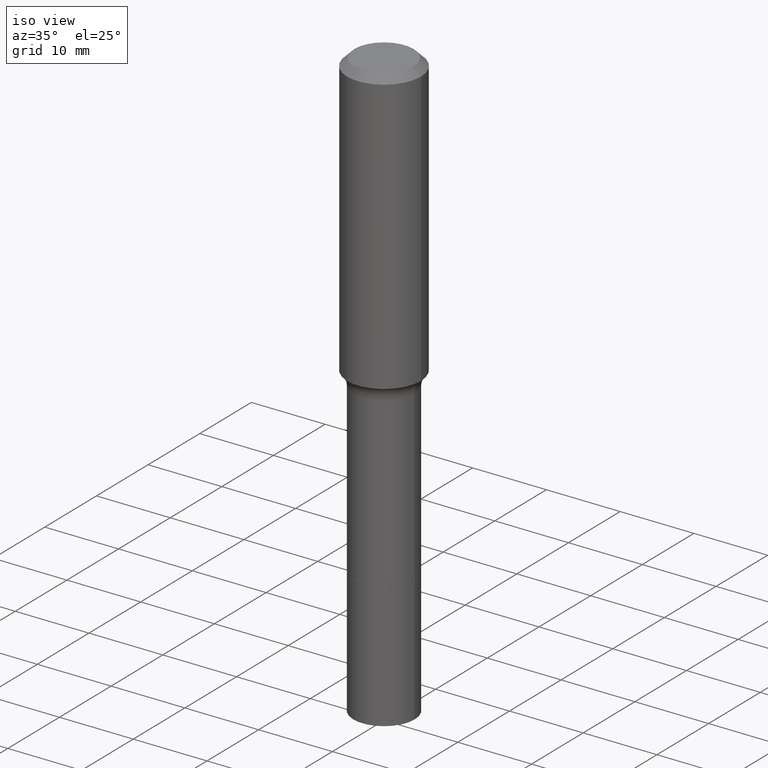
[diagram: clean part render]
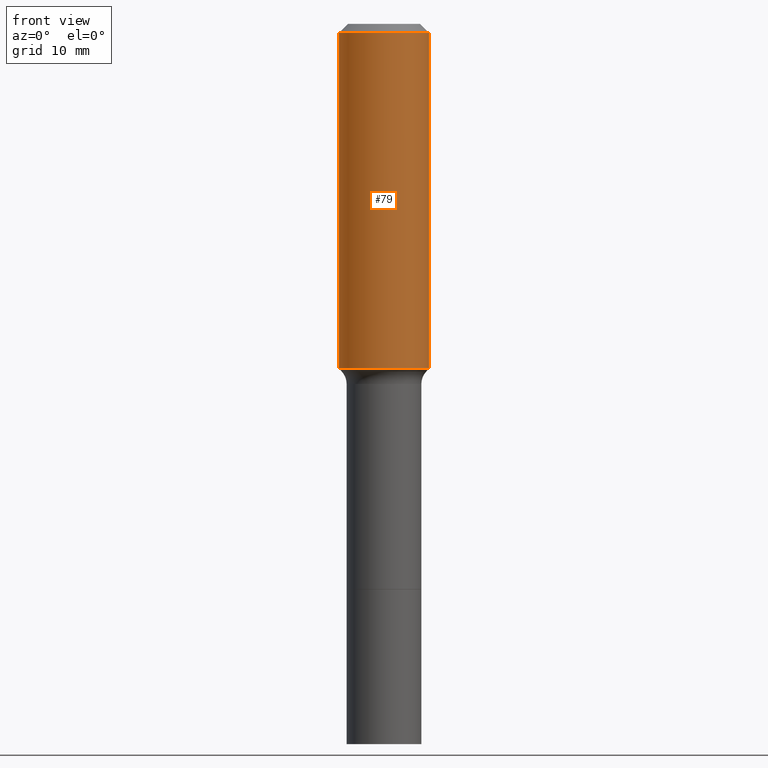
[diagram: tour spotlight — one face highlighted and labeled with its STEP entity id]
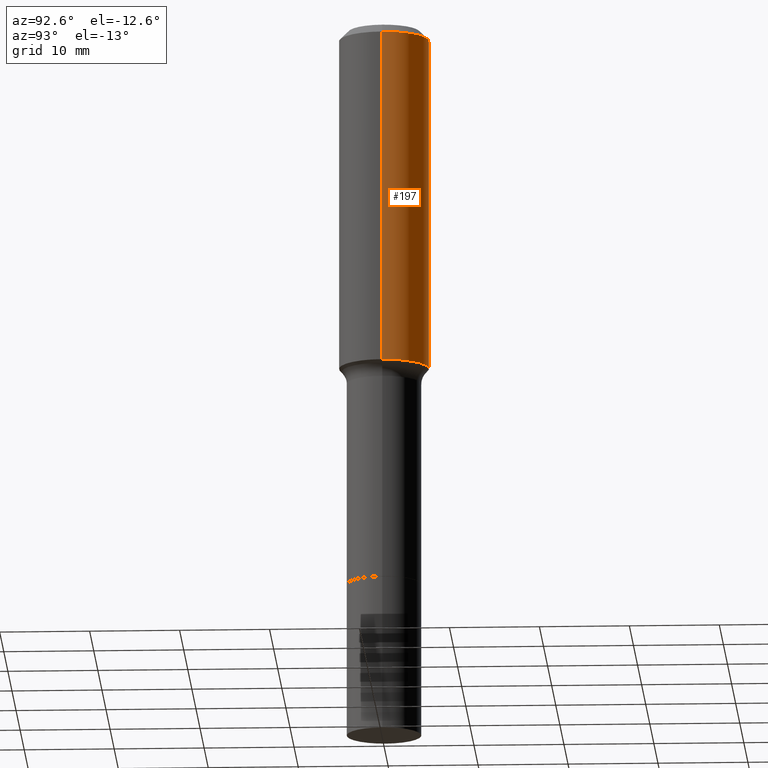
[diagram: tour spotlight — one face highlighted and labeled with its STEP entity id]
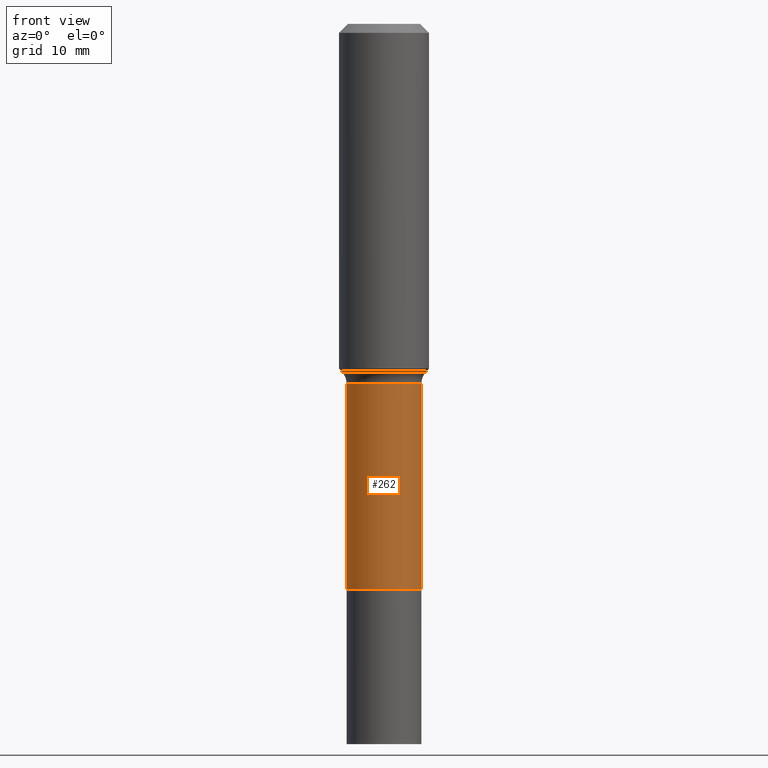
[diagram: tour spotlight — one face highlighted and labeled with its STEP entity id]
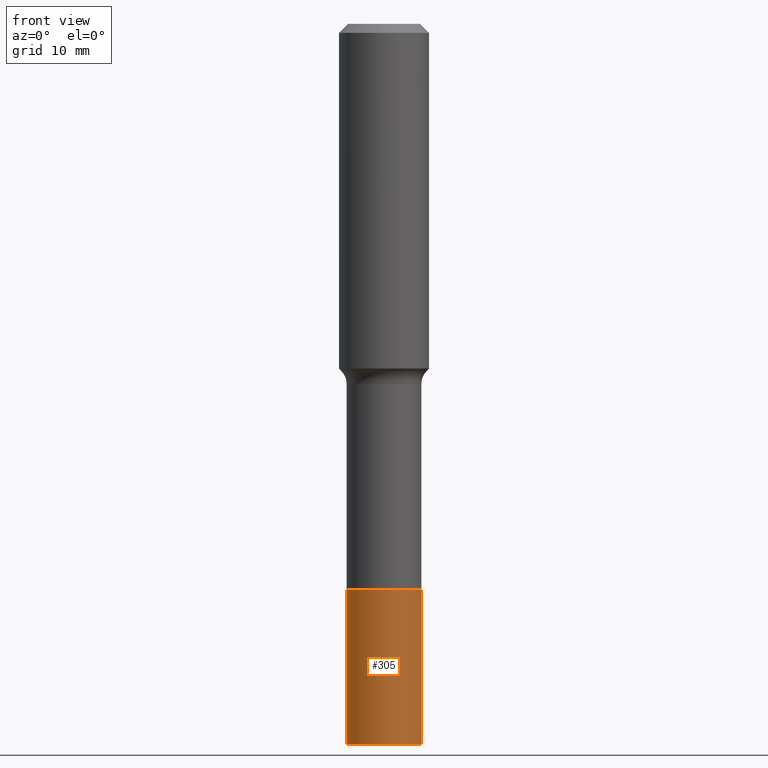
[diagram: tour spotlight — one face highlighted and labeled with its STEP entity id]
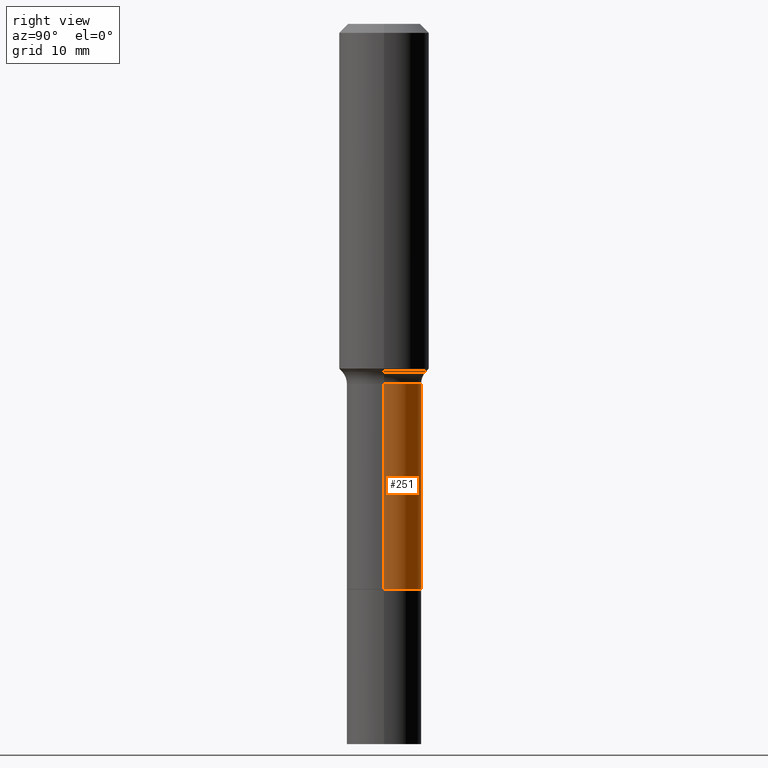
[diagram: tour spotlight — one face highlighted and labeled with its STEP entity id]
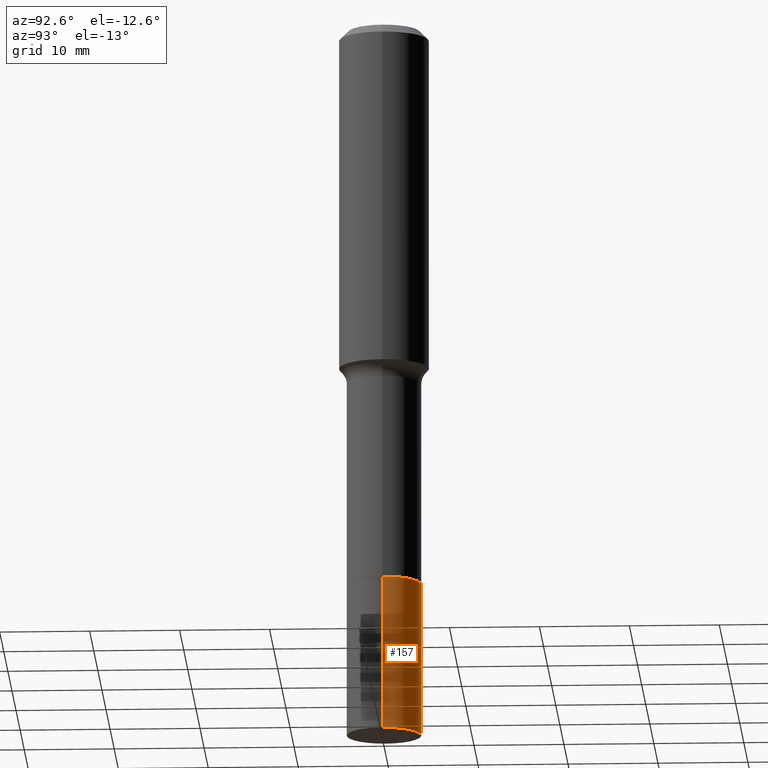
[diagram: tour spotlight — one face highlighted and labeled with its STEP entity id]
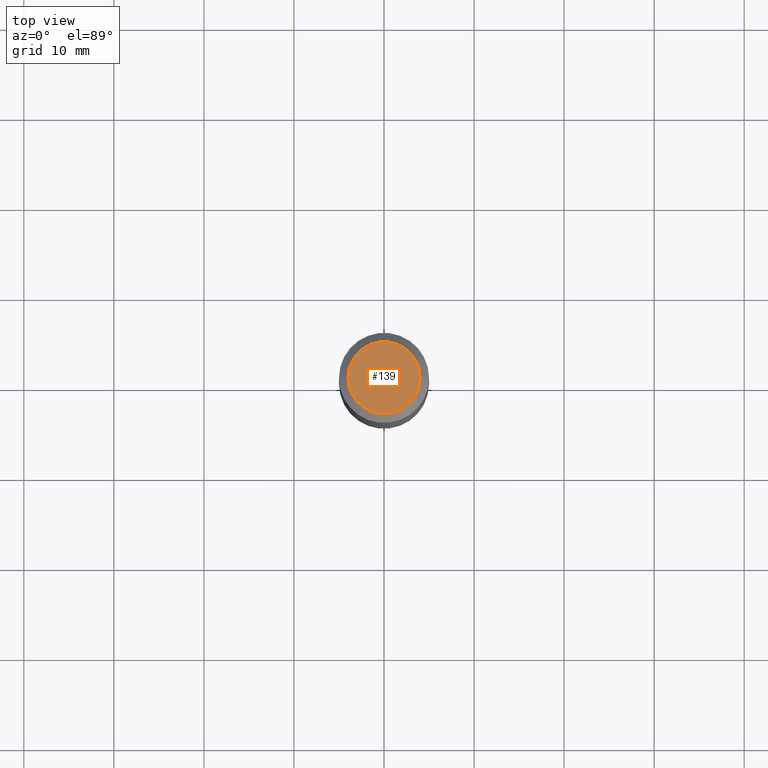
[diagram: tour spotlight — one face highlighted and labeled with its STEP entity id]
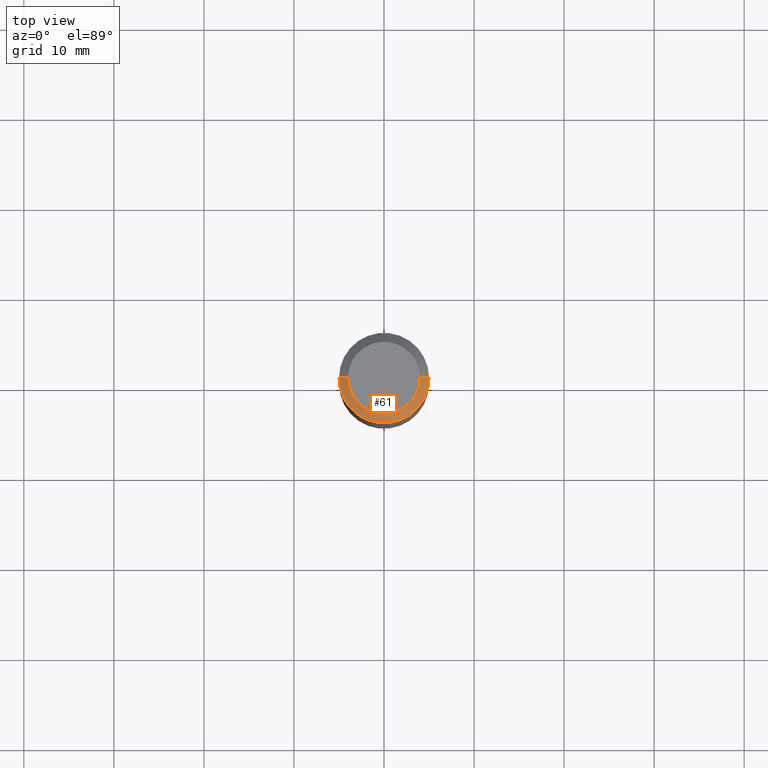
[diagram: tour spotlight — one face highlighted and labeled with its STEP entity id]
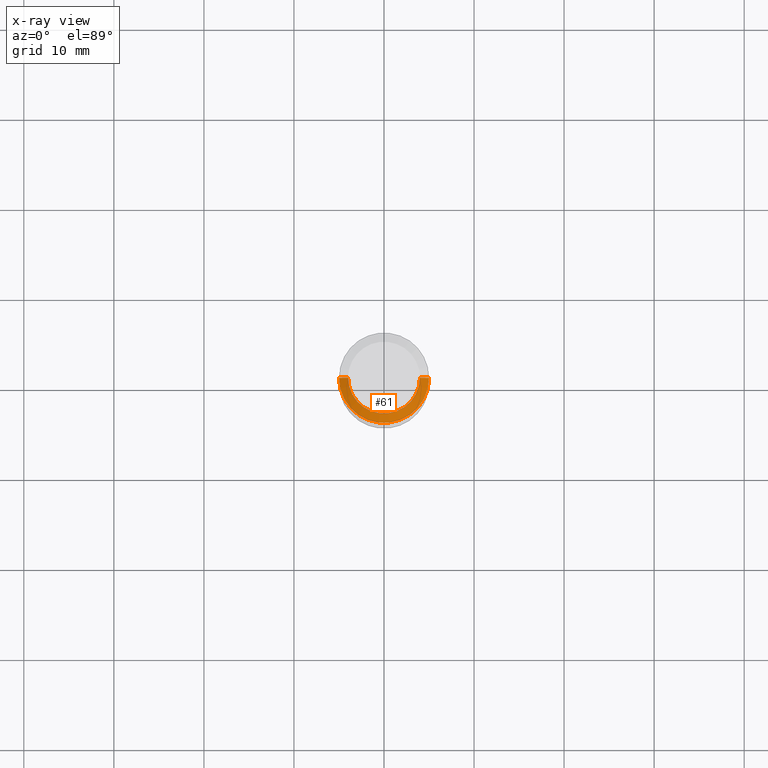
[diagram: x-ray of the same camera — body ghosted, this tour face saturated]
A machine part: a face-by-face anatomy tour. The part has 18 B-rep faces; the first image is the clean iso view, then the 8 largest visible faces are spotlighted one at a time (largest first), each with its STEP entity span.

Face 1 — front view, entity #79. In plain terms, the highlighted cylindrical surface (partial cylindrical patch) has radius 5 mm, axis along (-0, 0, 1).
Definition (entity closure, byte-faithful):
#14 = ORIENTED_EDGE ( 'NONE', *, *, #329, .F. ) ;
#29 = DIRECTION ( 'NONE',  ( 1.000000000000000000, -6.982962677686266711E-15, 0.000000000000000000 ) ) ;
#49 = ORIENTED_EDGE ( 'NONE', *, *, #206, .F. ) ;
#55 = ORIENTED_EDGE ( 'NONE', *, *, #429, .T. ) ;
#64 = EDGE_CURVE ( 'NONE', #209, #143, #324, .T. ) ;
#77 = FACE_OUTER_BOUND ( 'NONE', #460, .T. ) ;
#79 = ADVANCED_FACE ( 'NONE', ( #77 ), #150, .T. ) ;
#80 = DIRECTION ( 'NONE',  ( 1.000000000000000000, -6.982962677686265922E-15, 0.000000000000000000 ) ) ;
#97 = DIRECTION ( 'NONE',  ( -2.445468806185136597E-29, 3.491481338843145583E-15, 1.000000000000000000 ) ) ;
#111 = DIRECTION ( 'NONE',  ( -2.445468806185136597E-29, 3.491481338843145583E-15, 1.000000000000000000 ) ) ;
#112 = CARTESIAN_POINT ( 'NONE',  ( 0.1968500000000001082, -1.374596203102542397E-15, 9.598753983154305062E-30 ) ) ;
#136 = VECTOR ( 'NONE', #331, 39.37007874015748143 ) ;
#142 = CARTESIAN_POINT ( 'NONE',  ( -0.1968500000000000250, -1.301235451839561360E-15, -0.03937000000000025896 ) ) ;
#143 = VERTEX_POINT ( 'NONE', #238 ) ;
#146 = AXIS2_PLACEMENT_3D ( 'NONE', #502, #97, #29 ) ;
#150 = CYLINDRICAL_SURFACE ( 'NONE', #263, 0.1968500000000001082 ) ;
#159 = LINE ( 'NONE', #319, #136 ) ;
#206 = EDGE_CURVE ( 'NONE', #209, #406, #159, .T. ) ;
#209 = VERTEX_POINT ( 'NONE', #372 ) ;
#211 = DIRECTION ( 'NONE',  ( -2.445468806185136597E-29, 3.491481338843145583E-15, 1.000000000000000000 ) ) ;
#213 = CIRCLE ( 'NONE', #359, 0.1968500000000000250 ) ;
#238 = CARTESIAN_POINT ( 'NONE',  ( 0.1968500000000001915, -6.637014237158927084E-15, -1.507216428600478775 ) ) ;
#263 = AXIS2_PLACEMENT_3D ( 'NONE', #275, #111, #355 ) ;
#275 = CARTESIAN_POINT ( 'NONE',  ( 0.000000000000000000, 0.000000000000000000, 0.000000000000000000 ) ) ;
#276 = LINE ( 'NONE', #112, #425 ) ;
#279 = VERTEX_POINT ( 'NONE', #488 ) ;
#319 = CARTESIAN_POINT ( 'NONE',  ( -0.1968500000000001082, 1.398703375343757985E-15, -9.682923725166787881E-30 ) ) ;
#324 = CIRCLE ( 'NONE', #146, 0.1968500000000001915 ) ;
#329 = EDGE_CURVE ( 'NONE', #406, #279, #213, .T. ) ;
#331 = DIRECTION ( 'NONE',  ( -2.445468806185136877E-29, 3.491481338843145188E-15, 1.000000000000000000 ) ) ;
#355 = DIRECTION ( 'NONE',  ( 1.000000000000000000, -6.982962677686266711E-15, 4.876176775795935793E-29 ) ) ;
#359 = AXIS2_PLACEMENT_3D ( 'NONE', #484, #211, #80 ) ;
#372 = CARTESIAN_POINT ( 'NONE',  ( -0.1968500000000001915, -3.863714658712625321E-15, -1.507216428600478775 ) ) ;
#406 = VERTEX_POINT ( 'NONE', #142 ) ;
#425 = VECTOR ( 'NONE', #435, 39.37007874015748143 ) ;
#429 = EDGE_CURVE ( 'NONE', #143, #279, #276, .T. ) ;
#435 = DIRECTION ( 'NONE',  ( -2.445468806185136877E-29, 3.491481338843145188E-15, 1.000000000000000000 ) ) ;
#460 = EDGE_LOOP ( 'NONE', ( #49, #500, #55, #14 ) ) ;
#484 = CARTESIAN_POINT ( 'NONE',  ( 9.627810689950945397E-31, -1.374596203102555315E-16, -0.03937000000000025896 ) ) ;
#488 = CARTESIAN_POINT ( 'NONE',  ( 0.1968500000000000250, -1.512055823412797189E-15, -0.03937000000000025896 ) ) ;
#500 = ORIENTED_EDGE ( 'NONE', *, *, #64, .T. ) ;
#502 = CARTESIAN_POINT ( 'NONE',  ( 3.685850760312237966E-29, -5.262418034056383898E-15, -1.507216428600478775 ) ) ;

Face 2 — auxiliary view, entity #197. In plain terms, the highlighted cylindrical surface (partial cylindrical patch) has radius 5 mm, axis along (-0, 0, 1).
Definition (entity closure, byte-faithful):
#16 = ORIENTED_EDGE ( 'NONE', *, *, #429, .F. ) ;
#30 = CIRCLE ( 'NONE', #377, 0.1968500000000000250 ) ;
#34 = CYLINDRICAL_SURFACE ( 'NONE', #223, 0.1968500000000001082 ) ;
#39 = ORIENTED_EDGE ( 'NONE', *, *, #206, .T. ) ;
#52 = ORIENTED_EDGE ( 'NONE', *, *, #87, .F. ) ;
#66 = ORIENTED_EDGE ( 'NONE', *, *, #154, .T. ) ;
#74 = DIRECTION ( 'NONE',  ( -2.445468806185136597E-29, 3.491481338843145583E-15, 1.000000000000000000 ) ) ;
#87 = EDGE_CURVE ( 'NONE', #279, #406, #30, .T. ) ;
#112 = CARTESIAN_POINT ( 'NONE',  ( 0.1968500000000001082, -1.374596203102542397E-15, 9.598753983154305062E-30 ) ) ;
#116 = CIRCLE ( 'NONE', #167, 0.1968500000000001915 ) ;
#132 = EDGE_LOOP ( 'NONE', ( #66, #39, #52, #16 ) ) ;
#136 = VECTOR ( 'NONE', #331, 39.37007874015748143 ) ;
#142 = CARTESIAN_POINT ( 'NONE',  ( -0.1968500000000000250, -1.301235451839561360E-15, -0.03937000000000025896 ) ) ;
#143 = VERTEX_POINT ( 'NONE', #238 ) ;
#153 = DIRECTION ( 'NONE',  ( 1.000000000000000000, -6.982962677686265922E-15, 0.000000000000000000 ) ) ;
#154 = EDGE_CURVE ( 'NONE', #143, #209, #116, .T. ) ;
#159 = LINE ( 'NONE', #319, #136 ) ;
#167 = AXIS2_PLACEMENT_3D ( 'NONE', #239, #437, #517 ) ;
#197 = ADVANCED_FACE ( 'NONE', ( #397 ), #34, .T. ) ;
#198 = CARTESIAN_POINT ( 'NONE',  ( 0.000000000000000000, 0.000000000000000000, 0.000000000000000000 ) ) ;
#199 = DIRECTION ( 'NONE',  ( 1.000000000000000000, -6.982962677686266711E-15, 4.876176775795935793E-29 ) ) ;
#206 = EDGE_CURVE ( 'NONE', #209, #406, #159, .T. ) ;
#209 = VERTEX_POINT ( 'NONE', #372 ) ;
#223 = AXIS2_PLACEMENT_3D ( 'NONE', #198, #74, #199 ) ;
#238 = CARTESIAN_POINT ( 'NONE',  ( 0.1968500000000001915, -6.637014237158927084E-15, -1.507216428600478775 ) ) ;
#239 = CARTESIAN_POINT ( 'NONE',  ( 3.685850760312237966E-29, -5.262418034056383898E-15, -1.507216428600478775 ) ) ;
#271 = DIRECTION ( 'NONE',  ( -2.445468806185136597E-29, 3.491481338843145583E-15, 1.000000000000000000 ) ) ;
#276 = LINE ( 'NONE', #112, #425 ) ;
#279 = VERTEX_POINT ( 'NONE', #488 ) ;
#319 = CARTESIAN_POINT ( 'NONE',  ( -0.1968500000000001082, 1.398703375343757985E-15, -9.682923725166787881E-30 ) ) ;
#331 = DIRECTION ( 'NONE',  ( -2.445468806185136877E-29, 3.491481338843145188E-15, 1.000000000000000000 ) ) ;
#354 = CARTESIAN_POINT ( 'NONE',  ( 9.627810689950945397E-31, -1.374596203102555315E-16, -0.03937000000000025896 ) ) ;
#372 = CARTESIAN_POINT ( 'NONE',  ( -0.1968500000000001915, -3.863714658712625321E-15, -1.507216428600478775 ) ) ;
#377 = AXIS2_PLACEMENT_3D ( 'NONE', #354, #271, #153 ) ;
#397 = FACE_OUTER_BOUND ( 'NONE', #132, .T. ) ;
#406 = VERTEX_POINT ( 'NONE', #142 ) ;
#425 = VECTOR ( 'NONE', #435, 39.37007874015748143 ) ;
#429 = EDGE_CURVE ( 'NONE', #143, #279, #276, .T. ) ;
#435 = DIRECTION ( 'NONE',  ( -2.445468806185136877E-29, 3.491481338843145188E-15, 1.000000000000000000 ) ) ;
#437 = DIRECTION ( 'NONE',  ( -2.445468806185136597E-29, 3.491481338843145583E-15, 1.000000000000000000 ) ) ;
#488 = CARTESIAN_POINT ( 'NONE',  ( 0.1968500000000000250, -1.512055823412797189E-15, -0.03937000000000025896 ) ) ;
#517 = DIRECTION ( 'NONE',  ( 1.000000000000000000, -6.982962677686266711E-15, 0.000000000000000000 ) ) ;

Face 3 — front view, entity #262. In plain terms, the highlighted cylindrical surface (partial cylindrical patch) has radius 4.1504 mm, axis along (-0, 0, 1).
Definition (entity closure, byte-faithful):
#9 = CARTESIAN_POINT ( 'NONE',  ( -0.1633999999999999897, -5.903461936716274512E-15, -2.472100000000000186 ) ) ;
#13 = CARTESIAN_POINT ( 'NONE',  ( 3.850635182219116347E-29, -5.497686516142417553E-15, -1.574600000000000222 ) ) ;
#35 = CARTESIAN_POINT ( 'NONE',  ( 0.1633999999999999897, -9.772307119288075275E-15, -2.472100000000000186 ) ) ;
#43 = DIRECTION ( 'NONE',  ( 1.000000000000000000, -6.982962677686265922E-15, 0.000000000000000000 ) ) ;
#47 = EDGE_CURVE ( 'NONE', #69, #426, #464, .T. ) ;
#69 = VERTEX_POINT ( 'NONE', #35 ) ;
#75 = CARTESIAN_POINT ( 'NONE',  ( 0.1633999999999998787, -6.638702617676352518E-15, -1.574600000000000222 ) ) ;
#84 = VERTEX_POINT ( 'NONE', #114 ) ;
#91 = DIRECTION ( 'NONE',  ( 1.000000000000000000, -6.982962677686266711E-15, 4.876176775795935793E-29 ) ) ;
#104 = EDGE_LOOP ( 'NONE', ( #340, #257, #330, #383 ) ) ;
#114 = CARTESIAN_POINT ( 'NONE',  ( -0.1633999999999998787, -5.903461936716276090E-15, -1.574600000000000222 ) ) ;
#165 = EDGE_CURVE ( 'NONE', #219, #84, #441, .T. ) ;
#169 = CIRCLE ( 'NONE', #312, 0.1633999999999999897 ) ;
#170 = CARTESIAN_POINT ( 'NONE',  ( 6.045443435770276846E-29, -8.631291017754141099E-15, -2.472100000000000186 ) ) ;
#215 = DIRECTION ( 'NONE',  ( -2.445468806185136597E-29, 3.491481338843145583E-15, 1.000000000000000000 ) ) ;
#219 = VERTEX_POINT ( 'NONE', #9 ) ;
#230 = CIRCLE ( 'NONE', #401, 0.1633999999999998787 ) ;
#235 = CARTESIAN_POINT ( 'NONE',  ( -0.1633999999999999619, 1.161026830232003433E-15, -8.037539937476514246E-30 ) ) ;
#248 = DIRECTION ( 'NONE',  ( -2.445468806185136597E-29, 3.491481338843145583E-15, 1.000000000000000000 ) ) ;
#252 = CARTESIAN_POINT ( 'NONE',  ( 0.000000000000000000, 0.000000000000000000, 0.000000000000000000 ) ) ;
#257 = ORIENTED_EDGE ( 'NONE', *, *, #375, .T. ) ;
#262 = ADVANCED_FACE ( 'NONE', ( #409 ), #491, .T. ) ;
#265 = DIRECTION ( 'NONE',  ( -2.445468806185136877E-29, 3.491481338843145188E-15, 1.000000000000000000 ) ) ;
#304 = CARTESIAN_POINT ( 'NONE',  ( 0.1633999999999999619, -1.141016101533935753E-15, 7.967672851650557527E-30 ) ) ;
#312 = AXIS2_PLACEMENT_3D ( 'NONE', #170, #215, #374 ) ;
#330 = ORIENTED_EDGE ( 'NONE', *, *, #47, .T. ) ;
#340 = ORIENTED_EDGE ( 'NONE', *, *, #165, .F. ) ;
#344 = VECTOR ( 'NONE', #393, 39.37007874015748143 ) ;
#345 = AXIS2_PLACEMENT_3D ( 'NONE', #252, #248, #91 ) ;
#367 = VECTOR ( 'NONE', #265, 39.37007874015748143 ) ;
#374 = DIRECTION ( 'NONE',  ( 1.000000000000000000, -6.982962677686261189E-15, 0.000000000000000000 ) ) ;
#375 = EDGE_CURVE ( 'NONE', #219, #69, #169, .T. ) ;
#383 = ORIENTED_EDGE ( 'NONE', *, *, #442, .F. ) ;
#393 = DIRECTION ( 'NONE',  ( -2.445468806185136877E-29, 3.491481338843145188E-15, 1.000000000000000000 ) ) ;
#401 = AXIS2_PLACEMENT_3D ( 'NONE', #13, #403, #43 ) ;
#403 = DIRECTION ( 'NONE',  ( -2.445468806185136597E-29, 3.491481338843145583E-15, 1.000000000000000000 ) ) ;
#409 = FACE_OUTER_BOUND ( 'NONE', #104, .T. ) ;
#426 = VERTEX_POINT ( 'NONE', #75 ) ;
#441 = LINE ( 'NONE', #235, #344 ) ;
#442 = EDGE_CURVE ( 'NONE', #84, #426, #230, .T. ) ;
#464 = LINE ( 'NONE', #304, #367 ) ;
#491 = CYLINDRICAL_SURFACE ( 'NONE', #345, 0.1633999999999999619 ) ;

Face 4 — front view, entity #305. In plain terms, the highlighted cylindrical surface (partial cylindrical patch) has radius 4.1504 mm, axis along (-0, 0, 1).
Definition (entity closure, byte-faithful):
#4 = DIRECTION ( 'NONE',  ( 1.000000000000000000, -6.982962677686264344E-15, 0.000000000000000000 ) ) ;
#31 = LINE ( 'NONE', #270, #411 ) ;
#41 = VERTEX_POINT ( 'NONE', #422 ) ;
#98 = CARTESIAN_POINT ( 'NONE',  ( 0.1634000000000001007, -9.774052859957499145E-15, -2.472600000000000353 ) ) ;
#119 = AXIS2_PLACEMENT_3D ( 'NONE', #402, #451, #4 ) ;
#131 = FACE_OUTER_BOUND ( 'NONE', #149, .T. ) ;
#138 = LINE ( 'NONE', #98, #487 ) ;
#141 = ORIENTED_EDGE ( 'NONE', *, *, #185, .F. ) ;
#149 = EDGE_LOOP ( 'NONE', ( #414, #404, #266, #141 ) ) ;
#151 = AXIS2_PLACEMENT_3D ( 'NONE', #516, #350, #155 ) ;
#155 = DIRECTION ( 'NONE',  ( 1.000000000000000000, -6.982962677686261189E-15, 0.000000000000000000 ) ) ;
#161 = CYLINDRICAL_SURFACE ( 'NONE', #188, 0.1634000000000001007 ) ;
#173 = EDGE_CURVE ( 'NONE', #496, #268, #31, .T. ) ;
#174 = DIRECTION ( 'NONE',  ( -2.445468806185136877E-29, 3.491481338843145188E-15, 1.000000000000000000 ) ) ;
#185 = EDGE_CURVE ( 'NONE', #268, #227, #475, .T. ) ;
#188 = AXIS2_PLACEMENT_3D ( 'NONE', #286, #328, #361 ) ;
#227 = VERTEX_POINT ( 'NONE', #482 ) ;
#258 = CARTESIAN_POINT ( 'NONE',  ( -0.1634000000000001840, -8.653876361389961065E-15, -3.149600000000000399 ) ) ;
#266 = ORIENTED_EDGE ( 'NONE', *, *, #476, .T. ) ;
#268 = VERTEX_POINT ( 'NONE', #326 ) ;
#270 = CARTESIAN_POINT ( 'NONE',  ( -0.1634000000000001007, -7.472009928191558183E-15, -2.472600000000000353 ) ) ;
#286 = CARTESIAN_POINT ( 'NONE',  ( 6.046666170173369648E-29, -8.633036758423563392E-15, -2.472600000000000353 ) ) ;
#302 = CIRCLE ( 'NONE', #119, 0.1634000000000001840 ) ;
#305 = ADVANCED_FACE ( 'NONE', ( #131 ), #161, .T. ) ;
#326 = CARTESIAN_POINT ( 'NONE',  ( -0.1633999999999999897, -8.653876361389962642E-15, -2.472600000000000353 ) ) ;
#328 = DIRECTION ( 'NONE',  ( -2.445468806185136597E-29, 3.491481338843145583E-15, 1.000000000000000000 ) ) ;
#342 = EDGE_CURVE ( 'NONE', #496, #41, #302, .T. ) ;
#350 = DIRECTION ( 'NONE',  ( -2.445468806185136597E-29, 3.491481338843145583E-15, 1.000000000000000000 ) ) ;
#361 = DIRECTION ( 'NONE',  ( 1.000000000000000000, -6.982962677686268288E-15, 0.000000000000000000 ) ) ;
#402 = CARTESIAN_POINT ( 'NONE',  ( 7.702248551960706711E-29, -1.099676962482037231E-14, -3.149600000000000399 ) ) ;
#404 = ORIENTED_EDGE ( 'NONE', *, *, #342, .T. ) ;
#411 = VECTOR ( 'NONE', #434, 39.37007874015748143 ) ;
#414 = ORIENTED_EDGE ( 'NONE', *, *, #173, .F. ) ;
#422 = CARTESIAN_POINT ( 'NONE',  ( 0.1634000000000001840, -1.213778572635430964E-14, -3.149600000000000399 ) ) ;
#434 = DIRECTION ( 'NONE',  ( -2.445468806185136877E-29, 3.491481338843145188E-15, 1.000000000000000000 ) ) ;
#451 = DIRECTION ( 'NONE',  ( -2.445468806185136597E-29, 3.491481338843145583E-15, 1.000000000000000000 ) ) ;
#475 = CIRCLE ( 'NONE', #151, 0.1633999999999999897 ) ;
#476 = EDGE_CURVE ( 'NONE', #41, #227, #138, .T. ) ;
#482 = CARTESIAN_POINT ( 'NONE',  ( 0.1633999999999999897, -9.774052859957497567E-15, -2.472600000000000353 ) ) ;
#487 = VECTOR ( 'NONE', #174, 39.37007874015748143 ) ;
#496 = VERTEX_POINT ( 'NONE', #258 ) ;
#516 = CARTESIAN_POINT ( 'NONE',  ( 6.046666170173369648E-29, -8.633036758423563392E-15, -2.472600000000000353 ) ) ;

Face 5 — right view, entity #251. In plain terms, the highlighted cylindrical surface (partial cylindrical patch) has radius 4.1504 mm, axis along (-0, 0, 1).
Definition (entity closure, byte-faithful):
#9 = CARTESIAN_POINT ( 'NONE',  ( -0.1633999999999999897, -5.903461936716274512E-15, -2.472100000000000186 ) ) ;
#21 = EDGE_CURVE ( 'NONE', #69, #219, #351, .T. ) ;
#25 = CIRCLE ( 'NONE', #317, 0.1633999999999998787 ) ;
#35 = CARTESIAN_POINT ( 'NONE',  ( 0.1633999999999999897, -9.772307119288075275E-15, -2.472100000000000186 ) ) ;
#44 = AXIS2_PLACEMENT_3D ( 'NONE', #382, #506, #467 ) ;
#47 = EDGE_CURVE ( 'NONE', #69, #426, #464, .T. ) ;
#69 = VERTEX_POINT ( 'NONE', #35 ) ;
#75 = CARTESIAN_POINT ( 'NONE',  ( 0.1633999999999998787, -6.638702617676352518E-15, -1.574600000000000222 ) ) ;
#83 = DIRECTION ( 'NONE',  ( -2.445468806185136597E-29, 3.491481338843145583E-15, 1.000000000000000000 ) ) ;
#84 = VERTEX_POINT ( 'NONE', #114 ) ;
#114 = CARTESIAN_POINT ( 'NONE',  ( -0.1633999999999998787, -5.903461936716276090E-15, -1.574600000000000222 ) ) ;
#165 = EDGE_CURVE ( 'NONE', #219, #84, #441, .T. ) ;
#183 = ORIENTED_EDGE ( 'NONE', *, *, #165, .T. ) ;
#193 = EDGE_CURVE ( 'NONE', #426, #84, #25, .T. ) ;
#204 = DIRECTION ( 'NONE',  ( 1.000000000000000000, -6.982962677686266711E-15, 4.876176775795935793E-29 ) ) ;
#219 = VERTEX_POINT ( 'NONE', #9 ) ;
#235 = CARTESIAN_POINT ( 'NONE',  ( -0.1633999999999999619, 1.161026830232003433E-15, -8.037539937476514246E-30 ) ) ;
#251 = ADVANCED_FACE ( 'NONE', ( #291 ), #289, .T. ) ;
#265 = DIRECTION ( 'NONE',  ( -2.445468806185136877E-29, 3.491481338843145188E-15, 1.000000000000000000 ) ) ;
#272 = CARTESIAN_POINT ( 'NONE',  ( 3.850635182219116347E-29, -5.497686516142417553E-15, -1.574600000000000222 ) ) ;
#274 = DIRECTION ( 'NONE',  ( -2.445468806185136597E-29, 3.491481338843145583E-15, 1.000000000000000000 ) ) ;
#289 = CYLINDRICAL_SURFACE ( 'NONE', #399, 0.1633999999999999619 ) ;
#291 = FACE_OUTER_BOUND ( 'NONE', #452, .T. ) ;
#304 = CARTESIAN_POINT ( 'NONE',  ( 0.1633999999999999619, -1.141016101533935753E-15, 7.967672851650557527E-30 ) ) ;
#315 = DIRECTION ( 'NONE',  ( 1.000000000000000000, -6.982962677686265922E-15, 0.000000000000000000 ) ) ;
#317 = AXIS2_PLACEMENT_3D ( 'NONE', #272, #274, #315 ) ;
#336 = ORIENTED_EDGE ( 'NONE', *, *, #21, .T. ) ;
#344 = VECTOR ( 'NONE', #393, 39.37007874015748143 ) ;
#351 = CIRCLE ( 'NONE', #44, 0.1633999999999999897 ) ;
#367 = VECTOR ( 'NONE', #265, 39.37007874015748143 ) ;
#371 = ORIENTED_EDGE ( 'NONE', *, *, #47, .F. ) ;
#382 = CARTESIAN_POINT ( 'NONE',  ( 6.045443435770276846E-29, -8.631291017754141099E-15, -2.472100000000000186 ) ) ;
#393 = DIRECTION ( 'NONE',  ( -2.445468806185136877E-29, 3.491481338843145188E-15, 1.000000000000000000 ) ) ;
#399 = AXIS2_PLACEMENT_3D ( 'NONE', #457, #83, #204 ) ;
#426 = VERTEX_POINT ( 'NONE', #75 ) ;
#441 = LINE ( 'NONE', #235, #344 ) ;
#452 = EDGE_LOOP ( 'NONE', ( #336, #183, #489, #371 ) ) ;
#457 = CARTESIAN_POINT ( 'NONE',  ( 0.000000000000000000, 0.000000000000000000, 0.000000000000000000 ) ) ;
#464 = LINE ( 'NONE', #304, #367 ) ;
#467 = DIRECTION ( 'NONE',  ( 1.000000000000000000, -6.982962677686261189E-15, 0.000000000000000000 ) ) ;
#489 = ORIENTED_EDGE ( 'NONE', *, *, #193, .F. ) ;
#506 = DIRECTION ( 'NONE',  ( -2.445468806185136597E-29, 3.491481338843145583E-15, 1.000000000000000000 ) ) ;

Face 6 — auxiliary view, entity #157. In plain terms, the highlighted cylindrical surface (partial cylindrical patch) has radius 4.1504 mm, axis along (-0, 0, 1).
Definition (entity closure, byte-faithful):
#28 = ORIENTED_EDGE ( 'NONE', *, *, #476, .F. ) ;
#31 = LINE ( 'NONE', #270, #411 ) ;
#41 = VERTEX_POINT ( 'NONE', #422 ) ;
#50 = DIRECTION ( 'NONE',  ( -2.445468806185136597E-29, 3.491481338843145583E-15, 1.000000000000000000 ) ) ;
#71 = DIRECTION ( 'NONE',  ( -2.445468806185136597E-29, 3.491481338843145583E-15, 1.000000000000000000 ) ) ;
#76 = EDGE_CURVE ( 'NONE', #41, #496, #292, .T. ) ;
#98 = CARTESIAN_POINT ( 'NONE',  ( 0.1634000000000001007, -9.774052859957499145E-15, -2.472600000000000353 ) ) ;
#107 = AXIS2_PLACEMENT_3D ( 'NONE', #160, #50, #462 ) ;
#138 = LINE ( 'NONE', #98, #487 ) ;
#156 = CARTESIAN_POINT ( 'NONE',  ( 7.702248551960706711E-29, -1.099676962482037231E-14, -3.149600000000000399 ) ) ;
#157 = ADVANCED_FACE ( 'NONE', ( #398 ), #472, .T. ) ;
#160 = CARTESIAN_POINT ( 'NONE',  ( 6.046666170173369648E-29, -8.633036758423563392E-15, -2.472600000000000353 ) ) ;
#168 = ORIENTED_EDGE ( 'NONE', *, *, #173, .T. ) ;
#173 = EDGE_CURVE ( 'NONE', #496, #268, #31, .T. ) ;
#174 = DIRECTION ( 'NONE',  ( -2.445468806185136877E-29, 3.491481338843145188E-15, 1.000000000000000000 ) ) ;
#227 = VERTEX_POINT ( 'NONE', #482 ) ;
#233 = DIRECTION ( 'NONE',  ( 1.000000000000000000, -6.982962677686268288E-15, 0.000000000000000000 ) ) ;
#258 = CARTESIAN_POINT ( 'NONE',  ( -0.1634000000000001840, -8.653876361389961065E-15, -3.149600000000000399 ) ) ;
#268 = VERTEX_POINT ( 'NONE', #326 ) ;
#270 = CARTESIAN_POINT ( 'NONE',  ( -0.1634000000000001007, -7.472009928191558183E-15, -2.472600000000000353 ) ) ;
#292 = CIRCLE ( 'NONE', #486, 0.1634000000000001840 ) ;
#296 = ORIENTED_EDGE ( 'NONE', *, *, #454, .F. ) ;
#316 = DIRECTION ( 'NONE',  ( 1.000000000000000000, -6.982962677686264344E-15, 0.000000000000000000 ) ) ;
#326 = CARTESIAN_POINT ( 'NONE',  ( -0.1633999999999999897, -8.653876361389962642E-15, -2.472600000000000353 ) ) ;
#327 = ORIENTED_EDGE ( 'NONE', *, *, #76, .T. ) ;
#334 = AXIS2_PLACEMENT_3D ( 'NONE', #357, #470, #233 ) ;
#357 = CARTESIAN_POINT ( 'NONE',  ( 6.046666170173369648E-29, -8.633036758423563392E-15, -2.472600000000000353 ) ) ;
#368 = CIRCLE ( 'NONE', #107, 0.1633999999999999897 ) ;
#398 = FACE_OUTER_BOUND ( 'NONE', #461, .T. ) ;
#411 = VECTOR ( 'NONE', #434, 39.37007874015748143 ) ;
#422 = CARTESIAN_POINT ( 'NONE',  ( 0.1634000000000001840, -1.213778572635430964E-14, -3.149600000000000399 ) ) ;
#434 = DIRECTION ( 'NONE',  ( -2.445468806185136877E-29, 3.491481338843145188E-15, 1.000000000000000000 ) ) ;
#454 = EDGE_CURVE ( 'NONE', #227, #268, #368, .T. ) ;
#461 = EDGE_LOOP ( 'NONE', ( #327, #168, #296, #28 ) ) ;
#462 = DIRECTION ( 'NONE',  ( 1.000000000000000000, -6.982962677686261189E-15, 0.000000000000000000 ) ) ;
#470 = DIRECTION ( 'NONE',  ( -2.445468806185136597E-29, 3.491481338843145583E-15, 1.000000000000000000 ) ) ;
#472 = CYLINDRICAL_SURFACE ( 'NONE', #334, 0.1634000000000001007 ) ;
#476 = EDGE_CURVE ( 'NONE', #41, #227, #138, .T. ) ;
#482 = CARTESIAN_POINT ( 'NONE',  ( 0.1633999999999999897, -9.774052859957497567E-15, -2.472600000000000353 ) ) ;
#486 = AXIS2_PLACEMENT_3D ( 'NONE', #156, #71, #316 ) ;
#487 = VECTOR ( 'NONE', #174, 39.37007874015748143 ) ;
#496 = VERTEX_POINT ( 'NONE', #258 ) ;

Face 7 — top view, entity #139. In plain terms, the highlighted planar face has unit normal (0, -0, -1).
Definition (entity closure, byte-faithful):
#2 = DIRECTION ( 'NONE',  ( -2.445468806185136597E-29, 3.491481338843145583E-15, 1.000000000000000000 ) ) ;
#33 = DIRECTION ( 'NONE',  ( -2.445468806185136597E-29, 3.491481338843145583E-15, 1.000000000000000000 ) ) ;
#70 = PLANE ( 'NONE',  #394 ) ;
#72 = EDGE_CURVE ( 'NONE', #508, #172, #439, .T. ) ;
#105 = AXIS2_PLACEMENT_3D ( 'NONE', #438, #33, #479 ) ;
#120 = FACE_OUTER_BOUND ( 'NONE', #135, .T. ) ;
#135 = EDGE_LOOP ( 'NONE', ( #191, #466 ) ) ;
#139 = ADVANCED_FACE ( 'NONE', ( #120 ), #70, .F. ) ;
#172 = VERTEX_POINT ( 'NONE', #518 ) ;
#191 = ORIENTED_EDGE ( 'NONE', *, *, #290, .T. ) ;
#214 = CARTESIAN_POINT ( 'NONE',  ( 0.1574800000000000089, -1.284169937930321189E-15, 3.855188123724205385E-18 ) ) ;
#278 = CARTESIAN_POINT ( 'NONE',  ( -9.427742298522567634E-47, 1.346031739168368355E-32, 3.855188123715870730E-18 ) ) ;
#281 = DIRECTION ( 'NONE',  ( 1.000000000000000000, -6.982962677686265922E-15, 4.876223630392693006E-29 ) ) ;
#290 = EDGE_CURVE ( 'NONE', #172, #508, #471, .T. ) ;
#311 = DIRECTION ( 'NONE',  ( -1.000000000000000000, 6.982962677686265922E-15, -4.876176775795935793E-29 ) ) ;
#394 = AXIS2_PLACEMENT_3D ( 'NONE', #473, #396, #311 ) ;
#396 = DIRECTION ( 'NONE',  ( 2.438088387897960049E-29, -3.491481338843145188E-15, -1.000000000000000000 ) ) ;
#438 = CARTESIAN_POINT ( 'NONE',  ( -9.427742298522567634E-47, 1.346031739168368355E-32, 3.855188123715870730E-18 ) ) ;
#439 = CIRCLE ( 'NONE', #105, 0.1574800000000000089 ) ;
#466 = ORIENTED_EDGE ( 'NONE', *, *, #72, .T. ) ;
#471 = CIRCLE ( 'NONE', #515, 0.1574800000000000089 ) ;
#473 = CARTESIAN_POINT ( 'NONE',  ( -4.713871149261283817E-47, 6.730158695841841775E-33, 1.927594061857935365E-18 ) ) ;
#479 = DIRECTION ( 'NONE',  ( 1.000000000000000000, -6.982962677686265922E-15, 4.876223630392693006E-29 ) ) ;
#508 = VERTEX_POINT ( 'NONE', #214 ) ;
#515 = AXIS2_PLACEMENT_3D ( 'NONE', #278, #2, #281 ) ;
#518 = CARTESIAN_POINT ( 'NONE',  ( -0.1574800000000000089, 1.168406772637159618E-15, 3.855188123707939751E-18 ) ) ;

Face 8 — top view, entity #61. An x-ray twin of the same camera follows (body ghosted, this face saturated) — the face is partly hidden behind the body. In plain terms, the highlighted conical surface has half-angle 45 deg.
Definition (entity closure, byte-faithful):
#2 = DIRECTION ( 'NONE',  ( -2.445468806185136597E-29, 3.491481338843145583E-15, 1.000000000000000000 ) ) ;
#6 = ORIENTED_EDGE ( 'NONE', *, *, #110, .T. ) ;
#10 = EDGE_LOOP ( 'NONE', ( #24, #100, #6, #247 ) ) ;
#15 = DIRECTION ( 'NONE',  ( 0.7071067811865453523, -7.319954787623248157E-15, -0.7071067811865496822 ) ) ;
#24 = ORIENTED_EDGE ( 'NONE', *, *, #384, .F. ) ;
#61 = ADVANCED_FACE ( 'NONE', ( #189 ), #124, .T. ) ;
#80 = DIRECTION ( 'NONE',  ( 1.000000000000000000, -6.982962677686265922E-15, 0.000000000000000000 ) ) ;
#100 = ORIENTED_EDGE ( 'NONE', *, *, #290, .F. ) ;
#110 = EDGE_CURVE ( 'NONE', #172, #406, #512, .T. ) ;
#124 = CONICAL_SURFACE ( 'NONE', #424, 0.1968500000000000250, 0.7853981633974452814 ) ;
#142 = CARTESIAN_POINT ( 'NONE',  ( -0.1968500000000000250, -1.301235451839561360E-15, -0.03937000000000025896 ) ) ;
#172 = VERTEX_POINT ( 'NONE', #518 ) ;
#189 = FACE_OUTER_BOUND ( 'NONE', #10, .T. ) ;
#211 = DIRECTION ( 'NONE',  ( -2.445468806185136597E-29, 3.491481338843145583E-15, 1.000000000000000000 ) ) ;
#213 = CIRCLE ( 'NONE', #359, 0.1968500000000000250 ) ;
#214 = CARTESIAN_POINT ( 'NONE',  ( 0.1574800000000000089, -1.284169937930321189E-15, 3.855188123724205385E-18 ) ) ;
#221 = CARTESIAN_POINT ( 'NONE',  ( 0.1968500000000000250, -1.487948651171581601E-15, -0.03937000000000025896 ) ) ;
#247 = ORIENTED_EDGE ( 'NONE', *, *, #329, .T. ) ;
#278 = CARTESIAN_POINT ( 'NONE',  ( -9.427742298522567634E-47, 1.346031739168368355E-32, 3.855188123715870730E-18 ) ) ;
#279 = VERTEX_POINT ( 'NONE', #488 ) ;
#281 = DIRECTION ( 'NONE',  ( 1.000000000000000000, -6.982962677686265922E-15, 4.876223630392693006E-29 ) ) ;
#290 = EDGE_CURVE ( 'NONE', #172, #508, #471, .T. ) ;
#313 = DIRECTION ( 'NONE',  ( -0.7071067811865453523, 2.468850131082234184E-15, -0.7071067811865496822 ) ) ;
#329 = EDGE_CURVE ( 'NONE', #406, #279, #213, .T. ) ;
#346 = DIRECTION ( 'NONE',  ( -1.000000000000000000, 6.982962677686265922E-15, 0.000000000000000000 ) ) ;
#352 = VECTOR ( 'NONE', #15, 39.37007874015748143 ) ;
#359 = AXIS2_PLACEMENT_3D ( 'NONE', #484, #211, #80 ) ;
#380 = DIRECTION ( 'NONE',  ( 2.445468806185136597E-29, -3.491481338843145583E-15, -1.000000000000000000 ) ) ;
#384 = EDGE_CURVE ( 'NONE', #508, #279, #499, .T. ) ;
#406 = VERTEX_POINT ( 'NONE', #142 ) ;
#424 = AXIS2_PLACEMENT_3D ( 'NONE', #430, #380, #346 ) ;
#430 = CARTESIAN_POINT ( 'NONE',  ( 9.627810689950945397E-31, -1.374596203102555315E-16, -0.03937000000000025896 ) ) ;
#455 = VECTOR ( 'NONE', #313, 39.37007874015748143 ) ;
#471 = CIRCLE ( 'NONE', #515, 0.1574800000000000089 ) ;
#484 = CARTESIAN_POINT ( 'NONE',  ( 9.627810689950945397E-31, -1.374596203102555315E-16, -0.03937000000000025896 ) ) ;
#488 = CARTESIAN_POINT ( 'NONE',  ( 0.1968500000000000250, -1.512055823412797189E-15, -0.03937000000000025896 ) ) ;
#499 = LINE ( 'NONE', #221, #352 ) ;
#508 = VERTEX_POINT ( 'NONE', #214 ) ;
#512 = LINE ( 'NONE', #514, #455 ) ;
#514 = CARTESIAN_POINT ( 'NONE',  ( -0.1968500000000000250, 1.237136582792286225E-15, -0.03937000000000025896 ) ) ;
#515 = AXIS2_PLACEMENT_3D ( 'NONE', #278, #2, #281 ) ;
#518 = CARTESIAN_POINT ( 'NONE',  ( -0.1574800000000000089, 1.168406772637159618E-15, 3.855188123707939751E-18 ) ) ;